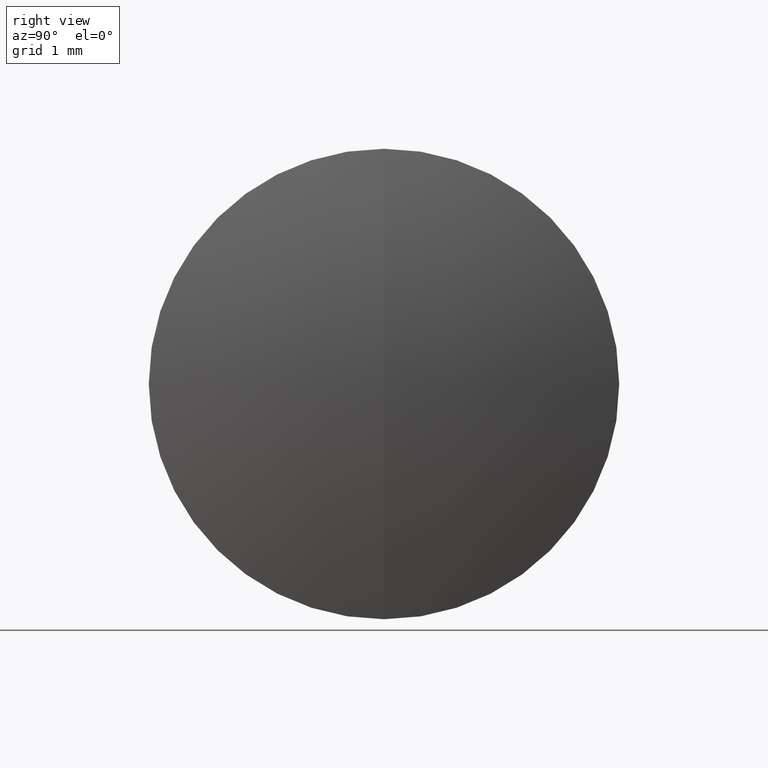
[diagram: clean part render]
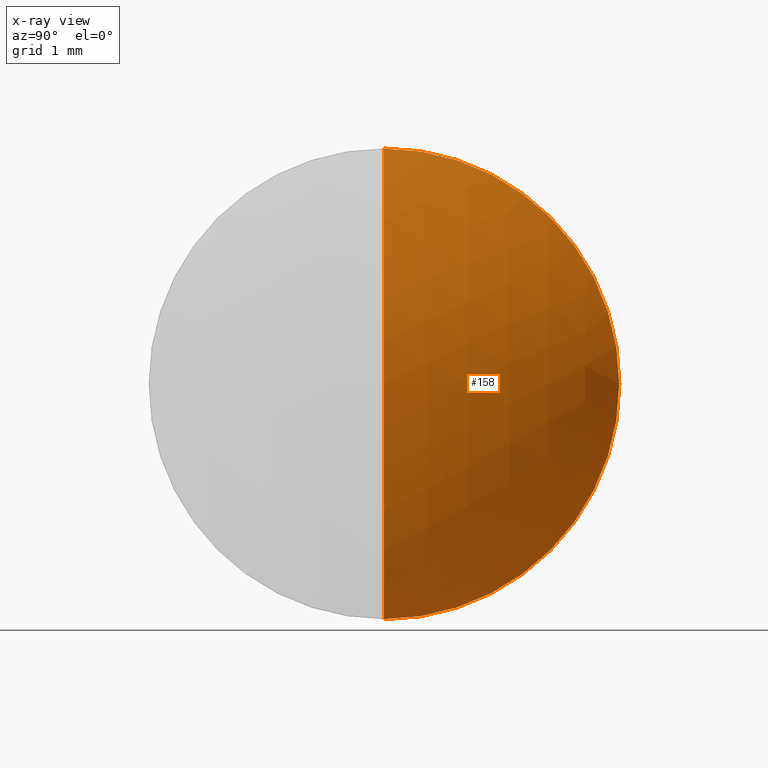
[diagram: x-ray — body ghosted, one internal face saturated and labeled with its STEP entity id]
A machine part, right view, then the same camera in x-ray: the body is ghosted and one INTERNAL B-rep face — a face not visible from any outside direction — is saturated and labeled: STEP entity #158.
In plain terms, the highlighted spherical surface has radius 4.89 mm.
Its self-contained STEP definition (entity closure, byte-faithful):
#12 = CARTESIAN_POINT ( 'NONE',  ( 2.377028588039097600, 0.0000000000000000000, 0.0000000000000000000 ) ) ;
#29 = AXIS2_PLACEMENT_3D ( 'NONE', #12, #311, #42 ) ;
#42 = DIRECTION ( 'NONE',  ( 0.0000000000000000000, 0.0000000000000000000, 1.000000000000000000 ) ) ;
#48 = EDGE_CURVE ( 'NONE', #178, #230, #75, .T. ) ;
#51 = DIRECTION ( 'NONE',  ( 0.0000000000000000000, 1.000000000000000000, 0.0000000000000000000 ) ) ;
#55 = DIRECTION ( 'NONE',  ( 0.0000000000000000000, 0.0000000000000000000, 1.000000000000000000 ) ) ;
#61 = ORIENTED_EDGE ( 'NONE', *, *, #219, .T. ) ;
#70 = CARTESIAN_POINT ( 'NONE',  ( 2.377028588039097600, 0.0000000000000000000, 3.174999999999999800 ) ) ;
#75 = CIRCLE ( 'NONE', #104, 4.889999999999999700 ) ;
#78 = EDGE_CURVE ( 'NONE', #230, #328, #135, .T. ) ;
#88 = CARTESIAN_POINT ( 'NONE',  ( 2.377028588039097600, 3.888253587292846100E-016, -3.174999999999999800 ) ) ;
#91 = AXIS2_PLACEMENT_3D ( 'NONE', #257, #209, #204 ) ;
#104 = AXIS2_PLACEMENT_3D ( 'NONE', #301, #243, #303 ) ;
#109 = AXIS2_PLACEMENT_3D ( 'NONE', #208, #51, #55 ) ;
#123 = ORIENTED_EDGE ( 'NONE', *, *, #48, .F. ) ;
#135 = CIRCLE ( 'NONE', #29, 3.174999999999999800 ) ;
#158 = ADVANCED_FACE ( 'NONE', ( #241 ), #252, .T. ) ;
#159 = ORIENTED_EDGE ( 'NONE', *, *, #78, .F. ) ;
#178 = VERTEX_POINT ( 'NONE', #222 ) ;
#201 = EDGE_LOOP ( 'NONE', ( #123, #61, #159 ) ) ;
#204 = DIRECTION ( 'NONE',  ( 0.0000000000000000000, -1.224646799147353200E-016, 1.000000000000000000 ) ) ;
#208 = CARTESIAN_POINT ( 'NONE',  ( -1.342040515916890000, 0.0000000000000000000, 7.023840951586055500E-017 ) ) ;
#209 = DIRECTION ( 'NONE',  ( -0.0000000000000000000, 1.000000000000000000, 1.224646799147353200E-016 ) ) ;
#219 = EDGE_CURVE ( 'NONE', #178, #328, #306, .T. ) ;
#222 = CARTESIAN_POINT ( 'NONE',  ( 3.547959484083109200, 0.0000000000000000000, 3.696645519073884000E-016 ) ) ;
#230 = VERTEX_POINT ( 'NONE', #70 ) ;
#241 = FACE_OUTER_BOUND ( 'NONE', #201, .T. ) ;
#243 = DIRECTION ( 'NONE',  ( 0.0000000000000000000, -1.000000000000000000, 0.0000000000000000000 ) ) ;
#252 = SPHERICAL_SURFACE ( 'NONE', #109, 4.889999999999999700 ) ;
#257 = CARTESIAN_POINT ( 'NONE',  ( -1.342040515916890000, 0.0000000000000000000, 7.023840951586055500E-017 ) ) ;
#301 = CARTESIAN_POINT ( 'NONE',  ( -1.342040515916890000, 0.0000000000000000000, 7.023840951586055500E-017 ) ) ;
#303 = DIRECTION ( 'NONE',  ( 0.0000000000000000000, 0.0000000000000000000, -1.000000000000000000 ) ) ;
#306 = CIRCLE ( 'NONE', #91, 4.889999999999999700 ) ;
#311 = DIRECTION ( 'NONE',  ( -1.000000000000000000, -0.0000000000000000000, -0.0000000000000000000 ) ) ;
#328 = VERTEX_POINT ( 'NONE', #88 ) ;